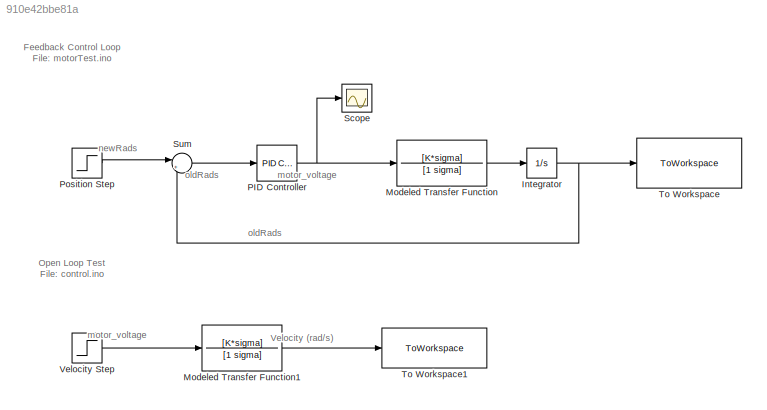
MODEL slx_910e42bbe81a
KIND model
CONFIG AbsTol = auto
CONFIG EnableMultiTasking = off
CONFIG FixedStep = auto
CONFIG MaxStep = auto
CONFIG MinStep = auto
CONFIG RelTol = 1e-3
CONFIG SampleTimeConstraint = Unconstrained
CONFIG SolverName = VariableStepAuto
CONFIG StartTime = 0.0
CONFIG StopTime = 10.0
BLOCK [Integrator] Integrator 
  Ports = [1, 1]
BLOCK [TransferFcn] Modeled Transfer Function
  Denominator = [1 sigma]
  Numerator = [K*sigma]
BLOCK [TransferFcn] Modeled Transfer Function1
  Denominator = [1 sigma]
  Numerator = [K*sigma]
BLOCK [Reference] PID Controller   REF=slpidlib/PID Controller
  Ports = [1, 1]
  SourceBlock = slpidlib/PID Controller
  SourceProductBaseCode = SL
  SourceType = PID 1dof
BLOCK [Step] Position Step 
  SampleTime = 0
BLOCK [Scope] Scope 
  Floating = off
  NumInputPorts = 1
  Ports = [1]
  ScopeSpecificationString = Simulink.scopes.TimeScopeBlockCfg('CurrentConfiguration', extmgr.ConfigurationSet(extmgr.Configuration('Core','General UI',true),extmgr.Configuration('Core','Source UI',true),extmgr.Configuration('Sources','WiredSimulink',true),extmgr.Configuration('Visuals','Time Domain',true,'SerializedDisplays',{struct('MinYLimReal','-0.13873','MaxYLimReal','1.2486','YLabelReal','','MinYLimMag','0.00000','MaxYL...<+1355ch>
BLOCK [Sum] Sum
  Inputs = |+-
  Ports = [2, 1]
BLOCK [ToWorkspace] To Workspace
  FixptAsFi = on
  MaxDataPoints = inf
  Ports = [1]
  SampleTime = -1
  SaveFormat = Timeseries
  VariableName = Closed_Loop_Position
BLOCK [ToWorkspace] To Workspace1
  FixptAsFi = on
  MaxDataPoints = inf
  Ports = [1]
  SampleTime = -1
  SaveFormat = Timeseries
  VariableName = Open_Loop_Velocity
BLOCK [Step] Velocity Step
  SampleTime = 0
ANNOTATION (root): Feedback Control Loop File: motorTest.ino
ANNOTATION (root): Open Loop Test File: control.ino
ANNOTATION (root): Velocity (rad/s)
ANNOTATION (root): motor_voltage
ANNOTATION (root): newRads
ANNOTATION (root): oldRads
NET Integrator :1 -> Sum:2, To Workspace:1
LINE Modeled Transfer Function1:1 -> To Workspace1:1
LINE Modeled Transfer Function:1 -> Integrator :1
NET PID Controller :1 -> Modeled Transfer Function:1, Scope :1
LINE Position Step :1 -> Sum:1
LINE Sum:1 -> PID Controller :1
LINE Velocity Step:1 -> Modeled Transfer Function1:1
note: NET lines group one-source signal fan-out (src -> all destinations, sorted); 1:1 wires keep LINE
